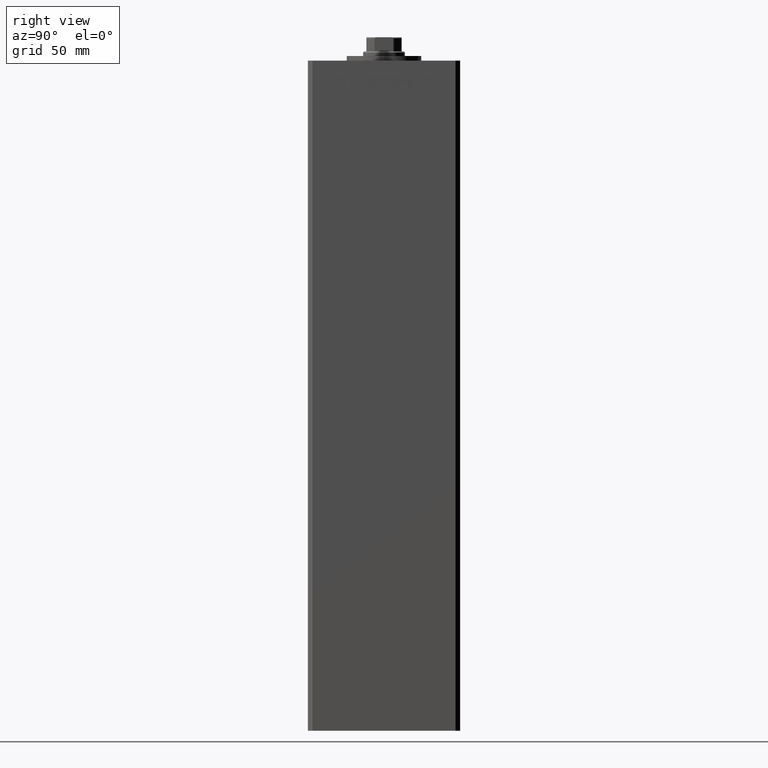
[diagram: clean part render]
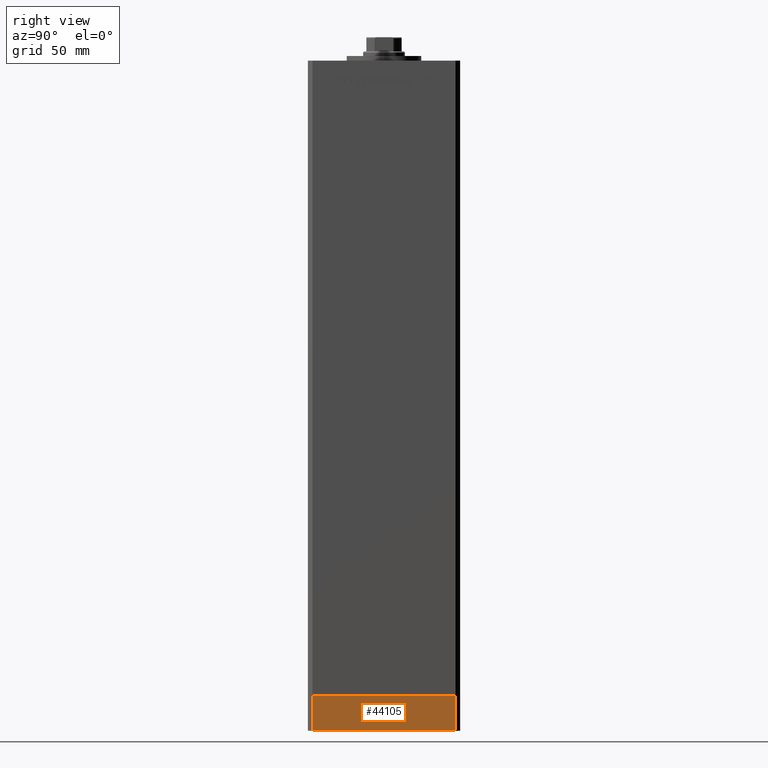
[diagram: same view with one face highlighted and labeled with its STEP entity id]
A machine part, right view. The second image highlights one B-rep face of the part: STEP entity #44105.
In plain terms, the highlighted planar face has unit normal (1, -0, 0).
Its self-contained STEP definition (entity closure, byte-faithful):
#650 = DIRECTION ( 'NONE',  ( 0.000000000000000000, 0.000000000000000000, 1.000000000000000000 ) ) ;
#1975 = CARTESIAN_POINT ( 'NONE',  ( -37.50000000000001421, 30.49999999999998579, -15.00000000000000000 ) ) ;
#2135 = DIRECTION ( 'NONE',  ( 4.550094363217855288E-16, -1.000000000000000000, 0.000000000000000000 ) ) ;
#2905 = LINE ( 'NONE', #30869, #19131 ) ;
#6883 = DIRECTION ( 'NONE',  ( 0.000000000000000000, 0.000000000000000000, 1.000000000000000000 ) ) ;
#6968 = FACE_OUTER_BOUND ( 'NONE', #33248, .T. ) ;
#8173 = CARTESIAN_POINT ( 'NONE',  ( -37.49999999999998579, -30.50000000000001421, 0.000000000000000000 ) ) ;
#14285 = LINE ( 'NONE', #49369, #50296 ) ;
#15760 = VERTEX_POINT ( 'NONE', #8173 ) ;
#16100 = VERTEX_POINT ( 'NONE', #36800 ) ;
#16118 = CARTESIAN_POINT ( 'NONE',  ( -37.50000000000001421, 30.49999999999998579, -15.00000000000000000 ) ) ;
#18017 = ORIENTED_EDGE ( 'NONE', *, *, #32362, .F. ) ;
#19131 = VECTOR ( 'NONE', #6883, 1000.000000000000000 ) ;
#19386 = VECTOR ( 'NONE', #650, 1000.000000000000000 ) ;
#21868 = AXIS2_PLACEMENT_3D ( 'NONE', #1975, #30192, #46275 ) ;
#24029 = ORIENTED_EDGE ( 'NONE', *, *, #46246, .T. ) ;
#25182 = DIRECTION ( 'NONE',  ( 4.550094363217855288E-16, -1.000000000000000000, 0.000000000000000000 ) ) ;
#26117 = VERTEX_POINT ( 'NONE', #16118 ) ;
#27728 = ORIENTED_EDGE ( 'NONE', *, *, #39189, .T. ) ;
#28871 = CARTESIAN_POINT ( 'NONE',  ( -37.49999999999998579, -30.50000000000001421, -15.00000000000000000 ) ) ;
#29149 = ORIENTED_EDGE ( 'NONE', *, *, #31267, .F. ) ;
#30192 = DIRECTION ( 'NONE',  ( -1.000000000000000000, -4.550094363217855288E-16, 0.000000000000000000 ) ) ;
#30869 = CARTESIAN_POINT ( 'NONE',  ( -37.50000000000001421, 30.49999999999998579, -15.00000000000000000 ) ) ;
#31267 = EDGE_CURVE ( 'NONE', #16100, #15760, #14285, .T. ) ;
#32362 = EDGE_CURVE ( 'NONE', #26117, #16100, #2905, .T. ) ;
#33248 = EDGE_LOOP ( 'NONE', ( #29149, #18017, #27728, #24029 ) ) ;
#33585 = VERTEX_POINT ( 'NONE', #38438 ) ;
#36800 = CARTESIAN_POINT ( 'NONE',  ( -37.50000000000001421, 30.49999999999998579, 0.000000000000000000 ) ) ;
#38106 = PLANE ( 'NONE',  #21868 ) ;
#38438 = CARTESIAN_POINT ( 'NONE',  ( -37.49999999999998579, -30.50000000000001421, -15.00000000000000000 ) ) ;
#39189 = EDGE_CURVE ( 'NONE', #26117, #33585, #49198, .T. ) ;
#40737 = LINE ( 'NONE', #28871, #19386 ) ;
#44105 = ADVANCED_FACE ( 'NONE', ( #6968 ), #38106, .T. ) ;
#46246 = EDGE_CURVE ( 'NONE', #33585, #15760, #40737, .T. ) ;
#46275 = DIRECTION ( 'NONE',  ( 4.550094363217855288E-16, -1.000000000000000000, 0.000000000000000000 ) ) ;
#48671 = CARTESIAN_POINT ( 'NONE',  ( -37.50000000000001421, 30.49999999999998579, -15.00000000000000000 ) ) ;
#49198 = LINE ( 'NONE', #48671, #52008 ) ;
#49369 = CARTESIAN_POINT ( 'NONE',  ( -37.50000000000001421, 30.49999999999998579, 0.000000000000000000 ) ) ;
#50296 = VECTOR ( 'NONE', #2135, 1000.000000000000000 ) ;
#52008 = VECTOR ( 'NONE', #25182, 1000.000000000000000 ) ;